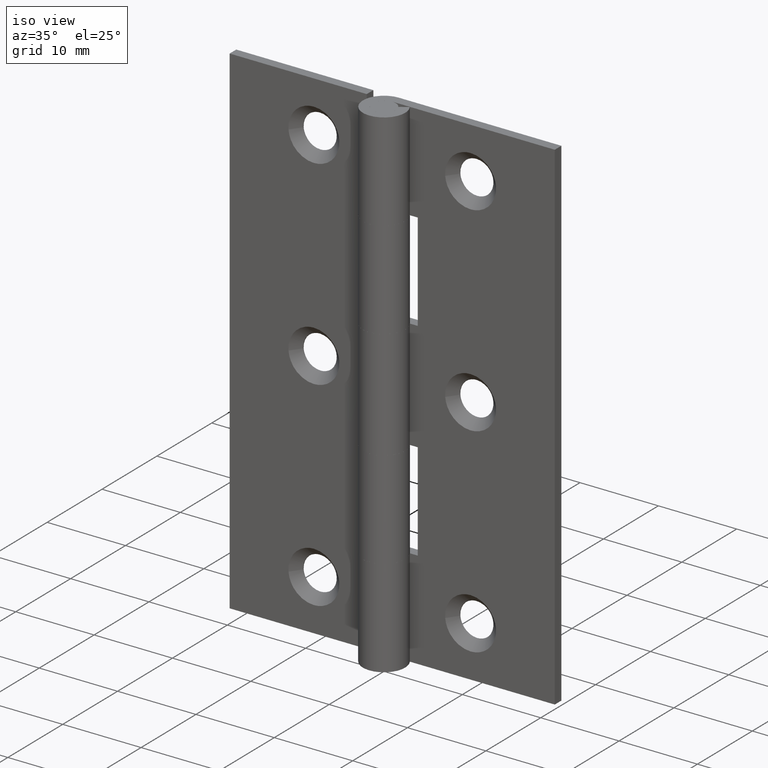
[diagram: clean part render]
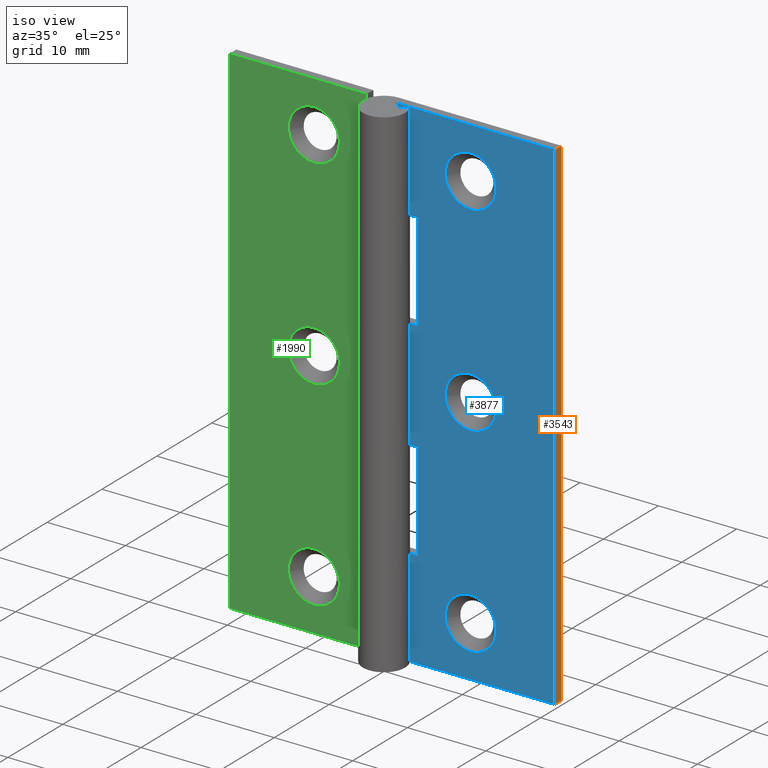
[diagram: same view with three faces highlighted in distinct colors, each labeled with its STEP entity id]
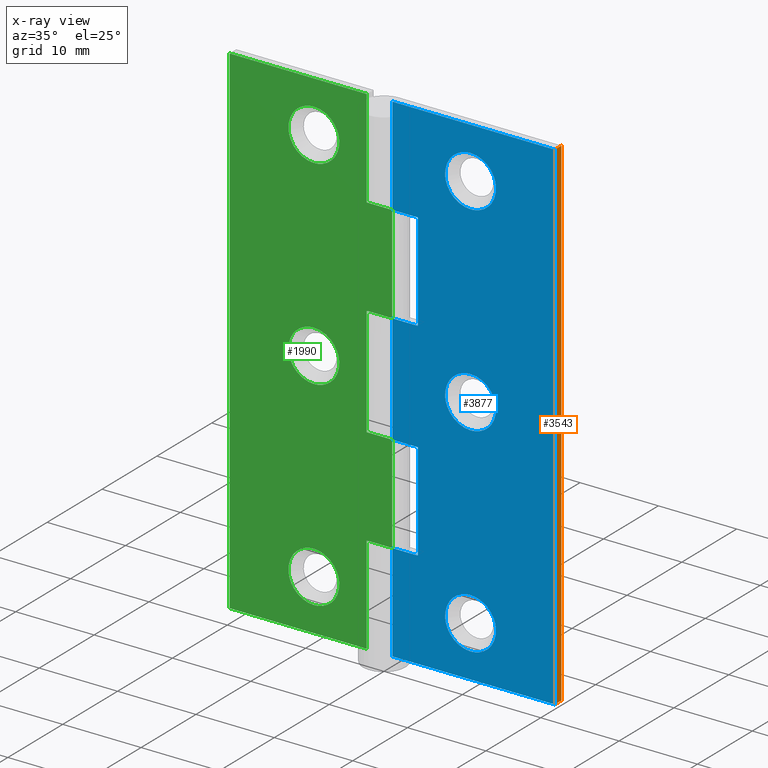
[diagram: x-ray of the same camera — body ghosted, the three highlighted faces saturated]
A machine part, iso view with three faces highlighted in distinct colors.
The next image is the same camera in x-ray (body ghosted, the three faces saturated) — at least one of them is partly hidden behind the body in this view.
Their STEP definitions:

[orange] entity #3543 — the highlighted face is a freeform B-spline surface patch.
#3375=CARTESIAN_POINT('',(20.750000000000000,1.500000000000000,64.000006999999897));
#3376=VERTEX_POINT('',#3375);
#3382=CARTESIAN_POINT('',(20.750000000000000,2.700001000000000,64.000006999999897));
#3383=VERTEX_POINT('',#3382);
#3384=CARTESIAN_POINT('',(20.750000000000000,1.500000000000000,64.000006999999897));
#3385=CARTESIAN_POINT('',(20.750000000000000,2.700001000000000,64.000006999999897));
#3386=QUASI_UNIFORM_CURVE('',1,(#3384,#3385),.UNSPECIFIED.,.F.,.U.);
#3387=EDGE_CURVE('',#3376,#3383,#3386,.T.);
#3453=CARTESIAN_POINT('',(20.750000000000000,1.500000000000000,0.0));
#3454=VERTEX_POINT('',#3453);
#3509=CARTESIAN_POINT('',(20.750000000000000,2.700001000000000,0.0));
#3510=VERTEX_POINT('',#3509);
#3516=CARTESIAN_POINT('',(20.750000000000000,1.500000000000000,0.0));
#3517=CARTESIAN_POINT('',(20.750000000000000,2.700001000000000,0.0));
#3518=QUASI_UNIFORM_CURVE('',1,(#3516,#3517),.UNSPECIFIED.,.F.,.U.);
#3519=EDGE_CURVE('',#3454,#3510,#3518,.T.);
#3524=CARTESIAN_POINT('',(20.750000000000000,1.440059952375835,67.196807826391733));
#3525=CARTESIAN_POINT('',(20.750000000000000,1.440059952375835,-3.196801970801143));
#3526=CARTESIAN_POINT('',(20.750000000000000,2.759941079810700,67.196807826391733));
#3527=CARTESIAN_POINT('',(20.750000000000000,2.759941079810700,-3.196801970801144));
#3528=B_SPLINE_SURFACE_WITH_KNOTS('',1,1,((#3524,#3526),(#3525,#3527)),.UNSPECIFIED.,.F.,.F.,.U.,(2,2),(2,2),(0.0,70.393609797192880),(0.041708334948495,0.958291687403247),.UNSPECIFIED.);
#3529=ORIENTED_EDGE('',*,*,#3387,.F.);
#3530=CARTESIAN_POINT('',(20.750000000000000,1.500000000000000,0.0));
#3531=CARTESIAN_POINT('',(20.750000000000000,1.500000000000000,64.000006999999897));
#3532=QUASI_UNIFORM_CURVE('',1,(#3530,#3531),.UNSPECIFIED.,.F.,.U.);
#3533=EDGE_CURVE('',#3454,#3376,#3532,.T.);
#3534=ORIENTED_EDGE('',*,*,#3533,.F.);
#3535=ORIENTED_EDGE('',*,*,#3519,.T.);
#3536=CARTESIAN_POINT('',(20.750000000000000,2.700001000000000,0.0));
#3537=CARTESIAN_POINT('',(20.750000000000000,2.700001000000000,64.000006999999897));
#3538=QUASI_UNIFORM_CURVE('',1,(#3536,#3537),.UNSPECIFIED.,.F.,.U.);
#3539=EDGE_CURVE('',#3510,#3383,#3538,.T.);
#3540=ORIENTED_EDGE('',*,*,#3539,.T.);
#3541=EDGE_LOOP('',(#3529,#3534,#3535,#3540));
#3542=FACE_OUTER_BOUND('',#3541,.T.);
#3543=ADVANCED_FACE('',(#3542),#3528,.T.);

[blue] entity #3877 — the highlighted face is a freeform B-spline surface patch.
#2252=CARTESIAN_POINT('',(13.239981275242370,1.499999999923259,57.754999057028073));
#2253=VERTEX_POINT('',#2252);
#2259=CARTESIAN_POINT('',(10.0,1.500000000000000,60.750006940395252));
#2260=VERTEX_POINT('',#2259);
#2261=CARTESIAN_POINT('',(10.0,1.500000000000000,60.750006940395252));
#2262=CARTESIAN_POINT('',(13.004269041706358,1.500000000000000,60.750006940395245));
#2263=CARTESIAN_POINT('',(13.239981275242370,1.499999999923259,57.754999057028073));
#2271=(BOUNDED_CURVE()B_SPLINE_CURVE(2,(#2261,#2262,#2263),.UNSPECIFIED.,.F.,.U.)B_SPLINE_CURVE_WITH_KNOTS((3,3),(0.0,0.236331300571056),.UNSPECIFIED.)CURVE()GEOMETRIC_REPRESENTATION_ITEM()RATIONAL_B_SPLINE_CURVE((1.0,0.723120658677496,0.969723356043029))REPRESENTATION_ITEM(''));
#2272=EDGE_CURVE('',#2260,#2253,#2271,.T.);
#2274=CARTESIAN_POINT('',(6.760018724757632,1.499999999923259,57.245014942971721));
#2275=VERTEX_POINT('',#2274);
#2276=CARTESIAN_POINT('',(6.760018724757632,1.499999999923260,57.245014942971721));
#2277=CARTESIAN_POINT('',(6.750000059604644,1.500000000000000,57.372314153980959));
#2278=CARTESIAN_POINT('',(6.750000059604645,1.500000000000000,57.500006999999897));
#2279=CARTESIAN_POINT('',(6.750000059604645,1.500000000000000,60.750006940395245));
#2280=CARTESIAN_POINT('',(10.0,1.500000000000000,60.750006940395252));
#2288=(BOUNDED_CURVE()B_SPLINE_CURVE(2,(#2276,#2277,#2278,#2279,#2280),.UNSPECIFIED.,.F.,.U.)B_SPLINE_CURVE_WITH_KNOTS((3,2,3),(0.736331300571056,0.750000000000000,1.0),.UNSPECIFIED.)CURVE()GEOMETRIC_REPRESENTATION_ITEM()RATIONAL_B_SPLINE_CURVE((0.969723356043029,0.983986122509051,1.0,0.707106781186547,1.0))REPRESENTATION_ITEM(''));
#2289=EDGE_CURVE('',#2275,#2260,#2288,.T.);
#2326=CARTESIAN_POINT('',(10.0,1.500000000000000,54.250007059604542));
#2327=VERTEX_POINT('',#2326);
#2328=CARTESIAN_POINT('',(10.0,1.500000000000000,54.250007059604542));
#2329=CARTESIAN_POINT('',(6.995730958293651,1.500000000000000,54.250007059604528));
#2330=CARTESIAN_POINT('',(6.760018724757632,1.499999999923259,57.245014942971721));
#2338=(BOUNDED_CURVE()B_SPLINE_CURVE(2,(#2328,#2329,#2330),.UNSPECIFIED.,.F.,.U.)B_SPLINE_CURVE_WITH_KNOTS((3,3),(0.500000000000000,0.736331300571055),.UNSPECIFIED.)CURVE()GEOMETRIC_REPRESENTATION_ITEM()RATIONAL_B_SPLINE_CURVE((1.0,0.723120658677496,0.969723356043028))REPRESENTATION_ITEM(''));
#2339=EDGE_CURVE('',#2327,#2275,#2338,.T.);
#2341=CARTESIAN_POINT('',(13.239981275242371,1.499999999923259,57.754999057028066));
#2342=CARTESIAN_POINT('',(13.249999940395362,1.500000000000000,57.627699846018842));
#2343=CARTESIAN_POINT('',(13.249999940395361,1.500000000000000,57.500006999999897));
#2344=CARTESIAN_POINT('',(13.249999940395357,1.500000000000000,54.250007059604535));
#2345=CARTESIAN_POINT('',(10.0,1.500000000000000,54.250007059604542));
#2353=(BOUNDED_CURVE()B_SPLINE_CURVE(2,(#2341,#2342,#2343,#2344,#2345),.UNSPECIFIED.,.F.,.U.)B_SPLINE_CURVE_WITH_KNOTS((3,2,3),(0.236331300571056,0.250000000000000,0.500000000000000),.UNSPECIFIED.)CURVE()GEOMETRIC_REPRESENTATION_ITEM()RATIONAL_B_SPLINE_CURVE((0.969723356043029,0.983986122509052,1.0,0.707106781186547,1.0))REPRESENTATION_ITEM(''));
#2354=EDGE_CURVE('',#2253,#2327,#2353,.T.);
#2580=CARTESIAN_POINT('',(13.239981275242370,1.499999999923258,32.254999057028172));
#2581=VERTEX_POINT('',#2580);
#2587=CARTESIAN_POINT('',(10.0,1.500000000000000,35.250006940395352));
#2588=VERTEX_POINT('',#2587);
#2589=CARTESIAN_POINT('',(10.0,1.500000000000000,35.250006940395352));
#2590=CARTESIAN_POINT('',(13.004269041706360,1.500000000000000,35.250006940395352));
#2591=CARTESIAN_POINT('',(13.239981275242368,1.499999999923258,32.254999057028165));
#2599=(BOUNDED_CURVE()B_SPLINE_CURVE(2,(#2589,#2590,#2591),.UNSPECIFIED.,.F.,.U.)B_SPLINE_CURVE_WITH_KNOTS((3,3),(0.0,0.236331300571056),.UNSPECIFIED.)CURVE()GEOMETRIC_REPRESENTATION_ITEM()RATIONAL_B_SPLINE_CURVE((1.0,0.723120658677495,0.969723356043030))REPRESENTATION_ITEM(''));
#2600=EDGE_CURVE('',#2588,#2581,#2599,.T.);
#2602=CARTESIAN_POINT('',(6.760018724757632,1.499999999923259,31.745014942971821));
#2603=VERTEX_POINT('',#2602);
#2604=CARTESIAN_POINT('',(6.760018724757632,1.499999999923260,31.745014942971824));
#2605=CARTESIAN_POINT('',(6.750000059604644,1.500000000000000,31.872314153981058));
#2606=CARTESIAN_POINT('',(6.750000059604645,1.500000000000000,32.000006999999997));
#2607=CARTESIAN_POINT('',(6.750000059604645,1.500000000000000,35.250006940395359));
#2608=CARTESIAN_POINT('',(10.0,1.500000000000000,35.250006940395352));
#2616=(BOUNDED_CURVE()B_SPLINE_CURVE(2,(#2604,#2605,#2606,#2607,#2608),.UNSPECIFIED.,.F.,.U.)B_SPLINE_CURVE_WITH_KNOTS((3,2,3),(0.736331300571056,0.750000000000000,1.0),.UNSPECIFIED.)CURVE()GEOMETRIC_REPRESENTATION_ITEM()RATIONAL_B_SPLINE_CURVE((0.969723356043029,0.983986122509051,1.0,0.707106781186547,1.0))REPRESENTATION_ITEM(''));
#2617=EDGE_CURVE('',#2603,#2588,#2616,.T.);
#2654=CARTESIAN_POINT('',(10.0,1.500000000000000,28.750007059604641));
#2655=VERTEX_POINT('',#2654);
#2656=CARTESIAN_POINT('',(10.0,1.500000000000000,28.750007059604641));
#2657=CARTESIAN_POINT('',(6.995730958293651,1.500000000000000,28.750007059604638));
#2658=CARTESIAN_POINT('',(6.760018724757632,1.499999999923259,31.745014942971821));
#2666=(BOUNDED_CURVE()B_SPLINE_CURVE(2,(#2656,#2657,#2658),.UNSPECIFIED.,.F.,.U.)B_SPLINE_CURVE_WITH_KNOTS((3,3),(0.500000000000000,0.736331300571055),.UNSPECIFIED.)CURVE()GEOMETRIC_REPRESENTATION_ITEM()RATIONAL_B_SPLINE_CURVE((1.0,0.723120658677496,0.969723356043028))REPRESENTATION_ITEM(''));
#2667=EDGE_CURVE('',#2655,#2603,#2666,.T.);
#2669=CARTESIAN_POINT('',(13.239981275242377,1.499999999923258,32.254999057028172));
#2670=CARTESIAN_POINT('',(13.249999940395359,1.500000000000000,32.127699846018935));
#2671=CARTESIAN_POINT('',(13.249999940395361,1.500000000000000,32.000006999999997));
#2672=CARTESIAN_POINT('',(13.249999940395357,1.500000000000000,28.750007059604634));
#2673=CARTESIAN_POINT('',(10.0,1.500000000000000,28.750007059604641));
#2681=(BOUNDED_CURVE()B_SPLINE_CURVE(2,(#2669,#2670,#2671,#2672,#2673),.UNSPECIFIED.,.F.,.U.)B_SPLINE_CURVE_WITH_KNOTS((3,2,3),(0.236331300571056,0.250000000000000,0.500000000000000),.UNSPECIFIED.)CURVE()GEOMETRIC_REPRESENTATION_ITEM()RATIONAL_B_SPLINE_CURVE((0.969723356043030,0.983986122509052,1.0,0.707106781186547,1.0))REPRESENTATION_ITEM(''));
#2682=EDGE_CURVE('',#2581,#2655,#2681,.T.);
#2908=CARTESIAN_POINT('',(13.239981275242370,1.499999999923258,6.754992057027959));
#2909=VERTEX_POINT('',#2908);
#2915=CARTESIAN_POINT('',(10.0,1.500000000000000,9.749999940395146));
#2916=VERTEX_POINT('',#2915);
#2917=CARTESIAN_POINT('',(10.0,1.500000000000000,9.749999940395146));
#2918=CARTESIAN_POINT('',(13.004269041706360,1.500000000000000,9.749999940395144));
#2919=CARTESIAN_POINT('',(13.239981275242368,1.499999999923258,6.754992057027959));
#2927=(BOUNDED_CURVE()B_SPLINE_CURVE(2,(#2917,#2918,#2919),.UNSPECIFIED.,.F.,.U.)B_SPLINE_CURVE_WITH_KNOTS((3,3),(0.0,0.236331300571056),.UNSPECIFIED.)CURVE()GEOMETRIC_REPRESENTATION_ITEM()RATIONAL_B_SPLINE_CURVE((1.0,0.723120658677495,0.969723356043030))REPRESENTATION_ITEM(''));
#2928=EDGE_CURVE('',#2916,#2909,#2927,.T.);
#2930=CARTESIAN_POINT('',(6.760018724757630,1.499999999923259,6.245007942971620));
#2931=VERTEX_POINT('',#2930);
#2932=CARTESIAN_POINT('',(6.760018724757630,1.499999999923259,6.245007942971620));
#2933=CARTESIAN_POINT('',(6.750000059604646,1.500000000000000,6.372307153980851));
#2934=CARTESIAN_POINT('',(6.750000059604645,1.500000000000000,6.499999999999790));
#2935=CARTESIAN_POINT('',(6.750000059604645,1.500000000000000,9.749999940395144));
#2936=CARTESIAN_POINT('',(10.0,1.500000000000000,9.749999940395146));
#2944=(BOUNDED_CURVE()B_SPLINE_CURVE(2,(#2932,#2933,#2934,#2935,#2936),.UNSPECIFIED.,.F.,.U.)B_SPLINE_CURVE_WITH_KNOTS((3,2,3),(0.736331300571056,0.750000000000000,1.0),.UNSPECIFIED.)CURVE()GEOMETRIC_REPRESENTATION_ITEM()RATIONAL_B_SPLINE_CURVE((0.969723356043030,0.983986122509052,1.0,0.707106781186547,1.0))REPRESENTATION_ITEM(''));
#2945=EDGE_CURVE('',#2931,#2916,#2944,.T.);
#2982=CARTESIAN_POINT('',(10.0,1.500000000000000,3.250000059604435));
#2983=VERTEX_POINT('',#2982);
#2984=CARTESIAN_POINT('',(10.0,1.500000000000000,3.250000059604435));
#2985=CARTESIAN_POINT('',(6.995730958293651,1.500000000000000,3.250000059604435));
#2986=CARTESIAN_POINT('',(6.760018724757630,1.499999999923259,6.245007942971620));
#2994=(BOUNDED_CURVE()B_SPLINE_CURVE(2,(#2984,#2985,#2986),.UNSPECIFIED.,.F.,.U.)B_SPLINE_CURVE_WITH_KNOTS((3,3),(0.500000000000000,0.736331300571055),.UNSPECIFIED.)CURVE()GEOMETRIC_REPRESENTATION_ITEM()RATIONAL_B_SPLINE_CURVE((1.0,0.723120658677496,0.969723356043028))REPRESENTATION_ITEM(''));
#2995=EDGE_CURVE('',#2983,#2931,#2994,.T.);
#2997=CARTESIAN_POINT('',(13.239981275242368,1.499999999923258,6.754992057027959));
#2998=CARTESIAN_POINT('',(13.249999940395359,1.500000000000000,6.627692846018728));
#2999=CARTESIAN_POINT('',(13.249999940395361,1.500000000000000,6.499999999999790));
#3000=CARTESIAN_POINT('',(13.249999940395357,1.500000000000000,3.250000059604436));
#3001=CARTESIAN_POINT('',(10.0,1.500000000000000,3.250000059604435));
#3009=(BOUNDED_CURVE()B_SPLINE_CURVE(2,(#2997,#2998,#2999,#3000,#3001),.UNSPECIFIED.,.F.,.U.)B_SPLINE_CURVE_WITH_KNOTS((3,2,3),(0.236331300571056,0.250000000000000,0.500000000000000),.UNSPECIFIED.)CURVE()GEOMETRIC_REPRESENTATION_ITEM()RATIONAL_B_SPLINE_CURVE((0.969723356043030,0.983986122509052,1.0,0.707106781186547,1.0))REPRESENTATION_ITEM(''));
#3010=EDGE_CURVE('',#2909,#2983,#3009,.T.);
#3021=CARTESIAN_POINT('',(3.250000000000000,1.499999999999946,39.000006999999897));
#3022=VERTEX_POINT('',#3021);
#3023=CARTESIAN_POINT('',(3.250000000000000,1.499999999999946,51.500006999999897));
#3024=VERTEX_POINT('',#3023);
#3025=CARTESIAN_POINT('',(3.250000000000000,1.499999999999946,39.000006999999897));
#3026=CARTESIAN_POINT('',(3.250000000000000,1.499999999999946,51.500006999999897));
#3027=QUASI_UNIFORM_CURVE('',1,(#3025,#3026),.UNSPECIFIED.,.F.,.U.);
#3028=EDGE_CURVE('',#3022,#3024,#3027,.T.);
#3057=CARTESIAN_POINT('',(-2.755364E-016,1.500000000000000,51.500006999999897));
#3058=VERTEX_POINT('',#3057);
#3059=CARTESIAN_POINT('',(3.250000000000000,1.499999999999946,51.500006999999897));
#3060=CARTESIAN_POINT('',(-2.755364E-016,1.500000000000000,51.500006999999897));
#3061=QUASI_UNIFORM_CURVE('',1,(#3059,#3060),.UNSPECIFIED.,.F.,.U.);
#3062=EDGE_CURVE('',#3024,#3058,#3061,.T.);
#3157=CARTESIAN_POINT('',(-2.755364E-016,1.500000000000000,39.000006999999947));
#3158=VERTEX_POINT('',#3157);
#3178=CARTESIAN_POINT('',(-2.755364E-016,1.500000000000000,39.000006999999947));
#3179=CARTESIAN_POINT('',(3.250000000000000,1.499999999999946,39.000006999999897));
#3180=QUASI_UNIFORM_CURVE('',1,(#3178,#3179),.UNSPECIFIED.,.F.,.U.);
#3181=EDGE_CURVE('',#3158,#3022,#3180,.T.);
#3199=CARTESIAN_POINT('',(3.250000000000000,1.499999999999946,25.0));
#3200=VERTEX_POINT('',#3199);
#3213=CARTESIAN_POINT('',(3.250000000000000,1.499999999999946,12.499999999999799));
#3214=VERTEX_POINT('',#3213);
#3220=CARTESIAN_POINT('',(3.250000000000000,1.499999999999946,25.0));
#3221=CARTESIAN_POINT('',(3.250000000000000,1.499999999999946,12.499999999999799));
#3222=QUASI_UNIFORM_CURVE('',1,(#3220,#3221),.UNSPECIFIED.,.F.,.U.);
#3223=EDGE_CURVE('',#3200,#3214,#3222,.T.);
#3269=CARTESIAN_POINT('',(-2.755364E-016,1.500000000000000,12.499999999999719));
#3270=VERTEX_POINT('',#3269);
#3290=CARTESIAN_POINT('',(3.250000000000000,1.499999999999946,12.499999999999799));
#3291=CARTESIAN_POINT('',(-2.755364E-016,1.500000000000000,12.499999999999719));
#3292=QUASI_UNIFORM_CURVE('',1,(#3290,#3291),.UNSPECIFIED.,.F.,.U.);
#3293=EDGE_CURVE('',#3214,#3270,#3292,.T.);
#3332=CARTESIAN_POINT('',(-2.755364E-016,1.500000000000000,25.0));
#3333=VERTEX_POINT('',#3332);
#3334=CARTESIAN_POINT('',(-2.755364E-016,1.500000000000000,25.0));
#3335=CARTESIAN_POINT('',(3.250000000000000,1.499999999999946,25.0));
#3336=QUASI_UNIFORM_CURVE('',1,(#3334,#3335),.UNSPECIFIED.,.F.,.U.);
#3337=EDGE_CURVE('',#3333,#3200,#3336,.T.);
#3373=CARTESIAN_POINT('',(-2.755364E-016,1.500000000000000,64.000006999999897));
#3374=VERTEX_POINT('',#3373);
#3375=CARTESIAN_POINT('',(20.750000000000000,1.500000000000000,64.000006999999897));
#3376=VERTEX_POINT('',#3375);
#3377=CARTESIAN_POINT('',(-2.755364E-016,1.500000000000000,64.000006999999897));
#3378=CARTESIAN_POINT('',(20.750000000000000,1.500000000000000,64.000006999999897));
#3379=QUASI_UNIFORM_CURVE('',1,(#3377,#3378),.UNSPECIFIED.,.F.,.U.);
#3380=EDGE_CURVE('',#3374,#3376,#3379,.T.);
#3451=CARTESIAN_POINT('',(-2.755364E-016,1.500000000000000,0.0));
#3452=VERTEX_POINT('',#3451);
#3453=CARTESIAN_POINT('',(20.750000000000000,1.500000000000000,0.0));
#3454=VERTEX_POINT('',#3453);
#3455=CARTESIAN_POINT('',(-2.755364E-016,1.500000000000000,0.0));
#3456=CARTESIAN_POINT('',(20.750000000000000,1.500000000000000,0.0));
#3457=QUASI_UNIFORM_CURVE('',1,(#3455,#3456),.UNSPECIFIED.,.F.,.U.);
#3458=EDGE_CURVE('',#3452,#3454,#3457,.T.);
#3530=CARTESIAN_POINT('',(20.750000000000000,1.500000000000000,0.0));
#3531=CARTESIAN_POINT('',(20.750000000000000,1.500000000000000,64.000006999999897));
#3532=QUASI_UNIFORM_CURVE('',1,(#3530,#3531),.UNSPECIFIED.,.F.,.U.);
#3533=EDGE_CURVE('',#3454,#3376,#3532,.T.);
#3566=CARTESIAN_POINT('',(-2.755364E-016,1.500000000000000,0.0));
#3567=CARTESIAN_POINT('',(-2.755364E-016,1.500000000000000,12.499999999999719));
#3568=QUASI_UNIFORM_CURVE('',1,(#3566,#3567),.UNSPECIFIED.,.F.,.U.);
#3569=EDGE_CURVE('',#3452,#3270,#3568,.T.);
#3604=CARTESIAN_POINT('',(-2.755364E-016,1.500000000000000,51.500006999999897));
#3605=CARTESIAN_POINT('',(-2.755364E-016,1.500000000000000,64.000006999999897));
#3606=QUASI_UNIFORM_CURVE('',1,(#3604,#3605),.UNSPECIFIED.,.F.,.U.);
#3607=EDGE_CURVE('',#3058,#3374,#3606,.T.);
#3749=CARTESIAN_POINT('',(-2.755364E-016,1.500000000000000,25.0));
#3750=CARTESIAN_POINT('',(-2.755364E-016,1.500000000000000,39.000006999999947));
#3751=QUASI_UNIFORM_CURVE('',1,(#3749,#3750),.UNSPECIFIED.,.F.,.U.);
#3752=EDGE_CURVE('',#3333,#3158,#3751,.T.);
#3840=CARTESIAN_POINT('',(-1.036462459782473,1.500000000000000,67.196807826391733));
#3841=CARTESIAN_POINT('',(-1.036462459782473,1.500000000000000,-3.196801970801143));
#3842=CARTESIAN_POINT('',(21.786463016340839,1.500000000000000,67.196807826391733));
#3843=CARTESIAN_POINT('',(21.786463016340839,1.500000000000000,-3.196801970801144));
#3844=B_SPLINE_SURFACE_WITH_KNOTS('',1,1,((#3840,#3842),(#3841,#3843)),.UNSPECIFIED.,.F.,.F.,.U.,(2,2),(2,2),(0.0,70.393609797192880),(0.0,22.822925476123320),.UNSPECIFIED.);
#3845=ORIENTED_EDGE('',*,*,#3181,.F.);
#3846=ORIENTED_EDGE('',*,*,#3752,.F.);
#3847=ORIENTED_EDGE('',*,*,#3337,.T.);
#3848=ORIENTED_EDGE('',*,*,#3223,.T.);
#3849=ORIENTED_EDGE('',*,*,#3293,.T.);
#3850=ORIENTED_EDGE('',*,*,#3569,.F.);
#3851=ORIENTED_EDGE('',*,*,#3458,.T.);
#3852=ORIENTED_EDGE('',*,*,#3533,.T.);
#3853=ORIENTED_EDGE('',*,*,#3380,.F.);
#3854=ORIENTED_EDGE('',*,*,#3607,.F.);
#3855=ORIENTED_EDGE('',*,*,#3062,.F.);
#3856=ORIENTED_EDGE('',*,*,#3028,.F.);
#3857=EDGE_LOOP('',(#3845,#3846,#3847,#3848,#3849,#3850,#3851,#3852,#3853,#3854,#3855,#3856));
#3858=FACE_OUTER_BOUND('',#3857,.T.);
#3859=ORIENTED_EDGE('',*,*,#2995,.T.);
#3860=ORIENTED_EDGE('',*,*,#2945,.T.);
#3861=ORIENTED_EDGE('',*,*,#2928,.T.);
#3862=ORIENTED_EDGE('',*,*,#3010,.T.);
#3863=EDGE_LOOP('',(#3859,#3860,#3861,#3862));
#3864=FACE_BOUND('',#3863,.T.);
#3865=ORIENTED_EDGE('',*,*,#2667,.T.);
#3866=ORIENTED_EDGE('',*,*,#2617,.T.);
#3867=ORIENTED_EDGE('',*,*,#2600,.T.);
#3868=ORIENTED_EDGE('',*,*,#2682,.T.);
#3869=EDGE_LOOP('',(#3865,#3866,#3867,#3868));
#3870=FACE_BOUND('',#3869,.T.);
#3871=ORIENTED_EDGE('',*,*,#2339,.T.);
#3872=ORIENTED_EDGE('',*,*,#2289,.T.);
#3873=ORIENTED_EDGE('',*,*,#2272,.T.);
#3874=ORIENTED_EDGE('',*,*,#2354,.T.);
#3875=EDGE_LOOP('',(#3871,#3872,#3873,#3874));
#3876=FACE_BOUND('',#3875,.T.);
#3877=ADVANCED_FACE('',(#3858,#3864,#3870,#3876),#3844,.T.);

[green] entity #1990 — the highlighted face is a freeform B-spline surface patch.
#515=CARTESIAN_POINT('',(-6.760018724757520,1.499999999923259,57.754999057028073));
#516=VERTEX_POINT('',#515);
#522=CARTESIAN_POINT('',(-9.999999999999890,1.500000000000000,60.750006940395252));
#523=VERTEX_POINT('',#522);
#524=CARTESIAN_POINT('',(-9.999999999999890,1.500000000000000,60.750006940395252));
#525=CARTESIAN_POINT('',(-6.995730958293531,1.500000000000000,60.750006940395245));
#526=CARTESIAN_POINT('',(-6.760018724757520,1.499999999923259,57.754999057028073));
#534=(BOUNDED_CURVE()B_SPLINE_CURVE(2,(#524,#525,#526),.UNSPECIFIED.,.F.,.U.)B_SPLINE_CURVE_WITH_KNOTS((3,3),(0.0,0.236331300571056),.UNSPECIFIED.)CURVE()GEOMETRIC_REPRESENTATION_ITEM()RATIONAL_B_SPLINE_CURVE((1.0,0.723120658677496,0.969723356043029))REPRESENTATION_ITEM(''));
#535=EDGE_CURVE('',#523,#516,#534,.T.);
#537=CARTESIAN_POINT('',(-13.239981275242259,1.499999999923259,57.245014942971721));
#538=VERTEX_POINT('',#537);
#539=CARTESIAN_POINT('',(-13.239981275242258,1.499999999923260,57.245014942971721));
#540=CARTESIAN_POINT('',(-13.249999940395250,1.500000000000000,57.372314153980966));
#541=CARTESIAN_POINT('',(-13.249999940395250,1.500000000000000,57.500006999999897));
#542=CARTESIAN_POINT('',(-13.249999940395245,1.500000000000000,60.750006940395245));
#543=CARTESIAN_POINT('',(-9.999999999999890,1.500000000000000,60.750006940395252));
#551=(BOUNDED_CURVE()B_SPLINE_CURVE(2,(#539,#540,#541,#542,#543),.UNSPECIFIED.,.F.,.U.)B_SPLINE_CURVE_WITH_KNOTS((3,2,3),(0.736331300571056,0.750000000000000,1.0),.UNSPECIFIED.)CURVE()GEOMETRIC_REPRESENTATION_ITEM()RATIONAL_B_SPLINE_CURVE((0.969723356043029,0.983986122509052,1.0,0.707106781186547,1.0))REPRESENTATION_ITEM(''));
#552=EDGE_CURVE('',#538,#523,#551,.T.);
#589=CARTESIAN_POINT('',(-9.999999999999890,1.500000000000000,54.250007059604542));
#590=VERTEX_POINT('',#589);
#591=CARTESIAN_POINT('',(-9.999999999999890,1.500000000000000,54.250007059604542));
#592=CARTESIAN_POINT('',(-13.004269041706239,1.500000000000000,54.250007059604528));
#593=CARTESIAN_POINT('',(-13.239981275242261,1.499999999923259,57.245014942971721));
#601=(BOUNDED_CURVE()B_SPLINE_CURVE(2,(#591,#592,#593),.UNSPECIFIED.,.F.,.U.)B_SPLINE_CURVE_WITH_KNOTS((3,3),(0.500000000000000,0.736331300571055),.UNSPECIFIED.)CURVE()GEOMETRIC_REPRESENTATION_ITEM()RATIONAL_B_SPLINE_CURVE((1.0,0.723120658677496,0.969723356043028))REPRESENTATION_ITEM(''));
#602=EDGE_CURVE('',#590,#538,#601,.T.);
#604=CARTESIAN_POINT('',(-6.760018724757520,1.499999999923259,57.754999057028080));
#605=CARTESIAN_POINT('',(-6.750000059604533,1.500000000000000,57.627699846018842));
#606=CARTESIAN_POINT('',(-6.750000059604534,1.500000000000000,57.500006999999897));
#607=CARTESIAN_POINT('',(-6.750000059604535,1.500000000000000,54.250007059604535));
#608=CARTESIAN_POINT('',(-9.999999999999890,1.500000000000000,54.250007059604542));
#616=(BOUNDED_CURVE()B_SPLINE_CURVE(2,(#604,#605,#606,#607,#608),.UNSPECIFIED.,.F.,.U.)B_SPLINE_CURVE_WITH_KNOTS((3,2,3),(0.236331300571056,0.250000000000000,0.500000000000000),.UNSPECIFIED.)CURVE()GEOMETRIC_REPRESENTATION_ITEM()RATIONAL_B_SPLINE_CURVE((0.969723356043029,0.983986122509052,1.0,0.707106781186547,1.0))REPRESENTATION_ITEM(''));
#617=EDGE_CURVE('',#516,#590,#616,.T.);
#843=CARTESIAN_POINT('',(-6.760018724757519,1.499999999923259,32.254999057028172));
#844=VERTEX_POINT('',#843);
#850=CARTESIAN_POINT('',(-9.999999999999890,1.500000000000000,35.250006940395352));
#851=VERTEX_POINT('',#850);
#852=CARTESIAN_POINT('',(-9.999999999999890,1.500000000000000,35.250006940395352));
#853=CARTESIAN_POINT('',(-6.995730958293532,1.500000000000000,35.250006940395352));
#854=CARTESIAN_POINT('',(-6.760018724757519,1.499999999923259,32.254999057028165));
#862=(BOUNDED_CURVE()B_SPLINE_CURVE(2,(#852,#853,#854),.UNSPECIFIED.,.F.,.U.)B_SPLINE_CURVE_WITH_KNOTS((3,3),(0.0,0.236331300571056),.UNSPECIFIED.)CURVE()GEOMETRIC_REPRESENTATION_ITEM()RATIONAL_B_SPLINE_CURVE((1.0,0.723120658677495,0.969723356043030))REPRESENTATION_ITEM(''));
#863=EDGE_CURVE('',#851,#844,#862,.T.);
#865=CARTESIAN_POINT('',(-13.239981275242259,1.499999999923259,31.745014942971832));
#866=VERTEX_POINT('',#865);
#867=CARTESIAN_POINT('',(-13.239981275242263,1.499999999923259,31.745014942971828));
#868=CARTESIAN_POINT('',(-13.249999940395247,1.500000000000000,31.872314153981058));
#869=CARTESIAN_POINT('',(-13.249999940395250,1.500000000000000,32.000006999999997));
#870=CARTESIAN_POINT('',(-13.249999940395245,1.500000000000000,35.250006940395359));
#871=CARTESIAN_POINT('',(-9.999999999999890,1.500000000000000,35.250006940395352));
#879=(BOUNDED_CURVE()B_SPLINE_CURVE(2,(#867,#868,#869,#870,#871),.UNSPECIFIED.,.F.,.U.)B_SPLINE_CURVE_WITH_KNOTS((3,2,3),(0.736331300571056,0.750000000000000,1.0),.UNSPECIFIED.)CURVE()GEOMETRIC_REPRESENTATION_ITEM()RATIONAL_B_SPLINE_CURVE((0.969723356043030,0.983986122509052,1.0,0.707106781186547,1.0))REPRESENTATION_ITEM(''));
#880=EDGE_CURVE('',#866,#851,#879,.T.);
#917=CARTESIAN_POINT('',(-9.999999999999890,1.500000000000000,28.750007059604641));
#918=VERTEX_POINT('',#917);
#919=CARTESIAN_POINT('',(-9.999999999999890,1.500000000000000,28.750007059604641));
#920=CARTESIAN_POINT('',(-13.004269041706239,1.500000000000000,28.750007059604638));
#921=CARTESIAN_POINT('',(-13.239981275242261,1.499999999923259,31.745014942971832));
#929=(BOUNDED_CURVE()B_SPLINE_CURVE(2,(#919,#920,#921),.UNSPECIFIED.,.F.,.U.)B_SPLINE_CURVE_WITH_KNOTS((3,3),(0.500000000000000,0.736331300571055),.UNSPECIFIED.)CURVE()GEOMETRIC_REPRESENTATION_ITEM()RATIONAL_B_SPLINE_CURVE((1.0,0.723120658677496,0.969723356043028))REPRESENTATION_ITEM(''));
#930=EDGE_CURVE('',#918,#866,#929,.T.);
#932=CARTESIAN_POINT('',(-6.760018724757519,1.499999999923259,32.254999057028172));
#933=CARTESIAN_POINT('',(-6.750000059604535,1.500000000000000,32.127699846018935));
#934=CARTESIAN_POINT('',(-6.750000059604534,1.500000000000000,32.000006999999997));
#935=CARTESIAN_POINT('',(-6.750000059604535,1.500000000000000,28.750007059604634));
#936=CARTESIAN_POINT('',(-9.999999999999890,1.500000000000000,28.750007059604641));
#944=(BOUNDED_CURVE()B_SPLINE_CURVE(2,(#932,#933,#934,#935,#936),.UNSPECIFIED.,.F.,.U.)B_SPLINE_CURVE_WITH_KNOTS((3,2,3),(0.236331300571056,0.250000000000000,0.500000000000000),.UNSPECIFIED.)CURVE()GEOMETRIC_REPRESENTATION_ITEM()RATIONAL_B_SPLINE_CURVE((0.969723356043030,0.983986122509052,1.0,0.707106781186547,1.0))REPRESENTATION_ITEM(''));
#945=EDGE_CURVE('',#844,#918,#944,.T.);
#1171=CARTESIAN_POINT('',(-6.760018724757520,1.499999999923259,6.754992057027959));
#1172=VERTEX_POINT('',#1171);
#1178=CARTESIAN_POINT('',(-9.999999999999890,1.500000000000000,9.749999940395146));
#1179=VERTEX_POINT('',#1178);
#1180=CARTESIAN_POINT('',(-9.999999999999890,1.500000000000000,9.749999940395146));
#1181=CARTESIAN_POINT('',(-6.995730958293531,1.500000000000000,9.749999940395146));
#1182=CARTESIAN_POINT('',(-6.760018724757520,1.499999999923259,6.754992057027959));
#1190=(BOUNDED_CURVE()B_SPLINE_CURVE(2,(#1180,#1181,#1182),.UNSPECIFIED.,.F.,.U.)B_SPLINE_CURVE_WITH_KNOTS((3,3),(0.0,0.236331300571056),.UNSPECIFIED.)CURVE()GEOMETRIC_REPRESENTATION_ITEM()RATIONAL_B_SPLINE_CURVE((1.0,0.723120658677496,0.969723356043029))REPRESENTATION_ITEM(''));
#1191=EDGE_CURVE('',#1179,#1172,#1190,.T.);
#1193=CARTESIAN_POINT('',(-13.239981275242259,1.499999999923259,6.245007942971620));
#1194=VERTEX_POINT('',#1193);
#1195=CARTESIAN_POINT('',(-13.239981275242267,1.499999999923258,6.245007942971620));
#1196=CARTESIAN_POINT('',(-13.249999940395249,1.500000000000000,6.372307153980851));
#1197=CARTESIAN_POINT('',(-13.249999940395250,1.500000000000000,6.499999999999790));
#1198=CARTESIAN_POINT('',(-13.249999940395245,1.500000000000000,9.749999940395144));
#1199=CARTESIAN_POINT('',(-9.999999999999890,1.500000000000000,9.749999940395146));
#1207=(BOUNDED_CURVE()B_SPLINE_CURVE(2,(#1195,#1196,#1197,#1198,#1199),.UNSPECIFIED.,.F.,.U.)B_SPLINE_CURVE_WITH_KNOTS((3,2,3),(0.736331300571056,0.750000000000000,1.0),.UNSPECIFIED.)CURVE()GEOMETRIC_REPRESENTATION_ITEM()RATIONAL_B_SPLINE_CURVE((0.969723356043030,0.983986122509052,1.0,0.707106781186547,1.0))REPRESENTATION_ITEM(''));
#1208=EDGE_CURVE('',#1194,#1179,#1207,.T.);
#1245=CARTESIAN_POINT('',(-9.999999999999890,1.500000000000000,3.250000059604435));
#1246=VERTEX_POINT('',#1245);
#1247=CARTESIAN_POINT('',(-9.999999999999890,1.500000000000000,3.250000059604435));
#1248=CARTESIAN_POINT('',(-13.004269041706239,1.500000000000000,3.250000059604435));
#1249=CARTESIAN_POINT('',(-13.239981275242261,1.499999999923259,6.245007942971620));
#1257=(BOUNDED_CURVE()B_SPLINE_CURVE(2,(#1247,#1248,#1249),.UNSPECIFIED.,.F.,.U.)B_SPLINE_CURVE_WITH_KNOTS((3,3),(0.500000000000000,0.736331300571055),.UNSPECIFIED.)CURVE()GEOMETRIC_REPRESENTATION_ITEM()RATIONAL_B_SPLINE_CURVE((1.0,0.723120658677496,0.969723356043028))REPRESENTATION_ITEM(''));
#1258=EDGE_CURVE('',#1246,#1194,#1257,.T.);
#1260=CARTESIAN_POINT('',(-6.760018724757520,1.499999999923259,6.754992057027959));
#1261=CARTESIAN_POINT('',(-6.750000059604535,1.500000000000000,6.627692846018728));
#1262=CARTESIAN_POINT('',(-6.750000059604534,1.500000000000000,6.499999999999790));
#1263=CARTESIAN_POINT('',(-6.750000059604535,1.500000000000000,3.250000059604436));
#1264=CARTESIAN_POINT('',(-9.999999999999890,1.500000000000000,3.250000059604435));
#1272=(BOUNDED_CURVE()B_SPLINE_CURVE(2,(#1260,#1261,#1262,#1263,#1264),.UNSPECIFIED.,.F.,.U.)B_SPLINE_CURVE_WITH_KNOTS((3,2,3),(0.236331300571056,0.250000000000000,0.500000000000000),.UNSPECIFIED.)CURVE()GEOMETRIC_REPRESENTATION_ITEM()RATIONAL_B_SPLINE_CURVE((0.969723356043029,0.983986122509052,1.0,0.707106781186547,1.0))REPRESENTATION_ITEM(''));
#1273=EDGE_CURVE('',#1172,#1246,#1272,.T.);
#1314=CARTESIAN_POINT('',(-3.249999999999915,1.499999999999946,51.500006999999897));
#1315=VERTEX_POINT('',#1314);
#1321=CARTESIAN_POINT('',(0.0,1.500000000000000,51.500006999999897));
#1322=VERTEX_POINT('',#1321);
#1323=CARTESIAN_POINT('',(0.0,1.500000000000000,51.500006999999897));
#1324=CARTESIAN_POINT('',(-3.249999999999915,1.499999999999946,51.500006999999897));
#1325=QUASI_UNIFORM_CURVE('',1,(#1323,#1324),.UNSPECIFIED.,.F.,.U.);
#1326=EDGE_CURVE('',#1322,#1315,#1325,.T.);
#1370=CARTESIAN_POINT('',(-3.249999999999915,1.499999999999946,64.000006999999897));
#1371=VERTEX_POINT('',#1370);
#1377=CARTESIAN_POINT('',(-3.249999999999915,1.499999999999946,51.500006999999897));
#1378=CARTESIAN_POINT('',(-3.249999999999915,1.499999999999946,64.000006999999897));
#1379=QUASI_UNIFORM_CURVE('',1,(#1377,#1378),.UNSPECIFIED.,.F.,.U.);
#1380=EDGE_CURVE('',#1315,#1371,#1379,.T.);
#1420=CARTESIAN_POINT('',(-3.249999999999915,1.499999999999946,25.0));
#1421=VERTEX_POINT('',#1420);
#1427=CARTESIAN_POINT('',(0.0,1.500000000000000,25.0));
#1428=VERTEX_POINT('',#1427);
#1429=CARTESIAN_POINT('',(0.0,1.500000000000000,25.0));
#1430=CARTESIAN_POINT('',(-3.249999999999915,1.499999999999946,25.0));
#1431=QUASI_UNIFORM_CURVE('',1,(#1429,#1430),.UNSPECIFIED.,.F.,.U.);
#1432=EDGE_CURVE('',#1428,#1421,#1431,.T.);
#1476=CARTESIAN_POINT('',(-3.249999999999915,1.499999999999946,39.000006999999897));
#1477=VERTEX_POINT('',#1476);
#1483=CARTESIAN_POINT('',(-3.249999999999915,1.499999999999946,25.0));
#1484=CARTESIAN_POINT('',(-3.249999999999915,1.499999999999946,39.000006999999897));
#1485=QUASI_UNIFORM_CURVE('',1,(#1483,#1484),.UNSPECIFIED.,.F.,.U.);
#1486=EDGE_CURVE('',#1421,#1477,#1485,.T.);
#1532=CARTESIAN_POINT('',(0.0,1.500000000000000,39.000006999999947));
#1533=VERTEX_POINT('',#1532);
#1553=CARTESIAN_POINT('',(-3.249999999999915,1.499999999999946,39.000006999999897));
#1554=CARTESIAN_POINT('',(0.0,1.500000000000000,39.000006999999947));
#1555=QUASI_UNIFORM_CURVE('',1,(#1553,#1554),.UNSPECIFIED.,.F.,.U.);
#1556=EDGE_CURVE('',#1477,#1533,#1555,.T.);
#1566=CARTESIAN_POINT('',(-3.249999999999915,1.499999999999946,12.499999999999799));
#1567=VERTEX_POINT('',#1566);
#1568=CARTESIAN_POINT('',(-3.249999999999915,1.500000000000000,0.0));
#1569=VERTEX_POINT('',#1568);
#1570=CARTESIAN_POINT('',(-3.249999999999915,1.499999999999946,12.499999999999799));
#1571=CARTESIAN_POINT('',(-3.249999999999915,1.500000000000000,0.0));
#1572=QUASI_UNIFORM_CURVE('',1,(#1570,#1571),.UNSPECIFIED.,.F.,.U.);
#1573=EDGE_CURVE('',#1567,#1569,#1572,.T.);
#1632=CARTESIAN_POINT('',(0.0,1.500000000000000,12.499999999999719));
#1633=VERTEX_POINT('',#1632);
#1653=CARTESIAN_POINT('',(0.0,1.500000000000000,12.499999999999719));
#1654=CARTESIAN_POINT('',(-3.249999999999915,1.499999999999946,12.499999999999799));
#1655=QUASI_UNIFORM_CURVE('',1,(#1653,#1654),.UNSPECIFIED.,.F.,.U.);
#1656=EDGE_CURVE('',#1633,#1567,#1655,.T.);
#1672=CARTESIAN_POINT('',(-20.750000000000000,1.500000000000000,64.000006999999897));
#1673=VERTEX_POINT('',#1672);
#1674=CARTESIAN_POINT('',(-20.750000000000000,1.500000000000000,64.000006999999897));
#1675=CARTESIAN_POINT('',(-3.249999999999915,1.499999999999946,64.000006999999897));
#1676=QUASI_UNIFORM_CURVE('',1,(#1674,#1675),.UNSPECIFIED.,.F.,.U.);
#1677=EDGE_CURVE('',#1673,#1371,#1676,.T.);
#1702=CARTESIAN_POINT('',(-20.750000000000000,1.500000000000000,0.0));
#1703=VERTEX_POINT('',#1702);
#1709=CARTESIAN_POINT('',(-20.750000000000000,1.500000000000000,64.000006999999897));
#1710=CARTESIAN_POINT('',(-20.750000000000000,1.500000000000000,0.0));
#1711=QUASI_UNIFORM_CURVE('',1,(#1709,#1710),.UNSPECIFIED.,.F.,.U.);
#1712=EDGE_CURVE('',#1673,#1703,#1711,.T.);
#1734=CARTESIAN_POINT('',(-20.750000000000000,1.500000000000000,0.0));
#1735=CARTESIAN_POINT('',(-3.249999999999915,1.500000000000000,0.0));
#1736=QUASI_UNIFORM_CURVE('',1,(#1734,#1735),.UNSPECIFIED.,.F.,.U.);
#1737=EDGE_CURVE('',#1703,#1569,#1736,.T.);
#1820=CARTESIAN_POINT('',(0.0,1.500000000000000,25.0));
#1821=CARTESIAN_POINT('',(0.0,1.500000000000000,12.499999999999719));
#1822=QUASI_UNIFORM_CURVE('',1,(#1820,#1821),.UNSPECIFIED.,.F.,.U.);
#1823=EDGE_CURVE('',#1428,#1633,#1822,.T.);
#1906=CARTESIAN_POINT('',(0.0,1.500000000000000,51.500006999999897));
#1907=CARTESIAN_POINT('',(0.0,1.500000000000000,39.000006999999947));
#1908=QUASI_UNIFORM_CURVE('',1,(#1906,#1907),.UNSPECIFIED.,.F.,.U.);
#1909=EDGE_CURVE('',#1322,#1533,#1908,.T.);
#1953=CARTESIAN_POINT('',(-21.786462459782470,1.500000000000000,-3.196800225605560));
#1954=CARTESIAN_POINT('',(-21.786462459782470,1.500000000000000,67.196808942219420));
#1955=CARTESIAN_POINT('',(1.036463016340842,1.500000000000000,-3.196800225605560));
#1956=CARTESIAN_POINT('',(1.036463016340842,1.500000000000000,67.196808942219420));
#1957=B_SPLINE_SURFACE_WITH_KNOTS('',1,1,((#1953,#1955),(#1954,#1956)),.UNSPECIFIED.,.F.,.F.,.U.,(2,2),(2,2),(0.0,70.393609167824977),(0.0,22.822925476123309),.UNSPECIFIED.);
#1958=ORIENTED_EDGE('',*,*,#1326,.T.);
#1959=ORIENTED_EDGE('',*,*,#1380,.T.);
#1960=ORIENTED_EDGE('',*,*,#1677,.F.);
#1961=ORIENTED_EDGE('',*,*,#1712,.T.);
#1962=ORIENTED_EDGE('',*,*,#1737,.T.);
#1963=ORIENTED_EDGE('',*,*,#1573,.F.);
#1964=ORIENTED_EDGE('',*,*,#1656,.F.);
#1965=ORIENTED_EDGE('',*,*,#1823,.F.);
#1966=ORIENTED_EDGE('',*,*,#1432,.T.);
#1967=ORIENTED_EDGE('',*,*,#1486,.T.);
#1968=ORIENTED_EDGE('',*,*,#1556,.T.);
#1969=ORIENTED_EDGE('',*,*,#1909,.F.);
#1970=EDGE_LOOP('',(#1958,#1959,#1960,#1961,#1962,#1963,#1964,#1965,#1966,#1967,#1968,#1969));
#1971=FACE_OUTER_BOUND('',#1970,.T.);
#1972=ORIENTED_EDGE('',*,*,#1258,.T.);
#1973=ORIENTED_EDGE('',*,*,#1208,.T.);
#1974=ORIENTED_EDGE('',*,*,#1191,.T.);
#1975=ORIENTED_EDGE('',*,*,#1273,.T.);
#1976=EDGE_LOOP('',(#1972,#1973,#1974,#1975));
#1977=FACE_BOUND('',#1976,.T.);
#1978=ORIENTED_EDGE('',*,*,#930,.T.);
#1979=ORIENTED_EDGE('',*,*,#880,.T.);
#1980=ORIENTED_EDGE('',*,*,#863,.T.);
#1981=ORIENTED_EDGE('',*,*,#945,.T.);
#1982=EDGE_LOOP('',(#1978,#1979,#1980,#1981));
#1983=FACE_BOUND('',#1982,.T.);
#1984=ORIENTED_EDGE('',*,*,#602,.T.);
#1985=ORIENTED_EDGE('',*,*,#552,.T.);
#1986=ORIENTED_EDGE('',*,*,#535,.T.);
#1987=ORIENTED_EDGE('',*,*,#617,.T.);
#1988=EDGE_LOOP('',(#1984,#1985,#1986,#1987));
#1989=FACE_BOUND('',#1988,.T.);
#1990=ADVANCED_FACE('',(#1971,#1977,#1983,#1989),#1957,.F.);